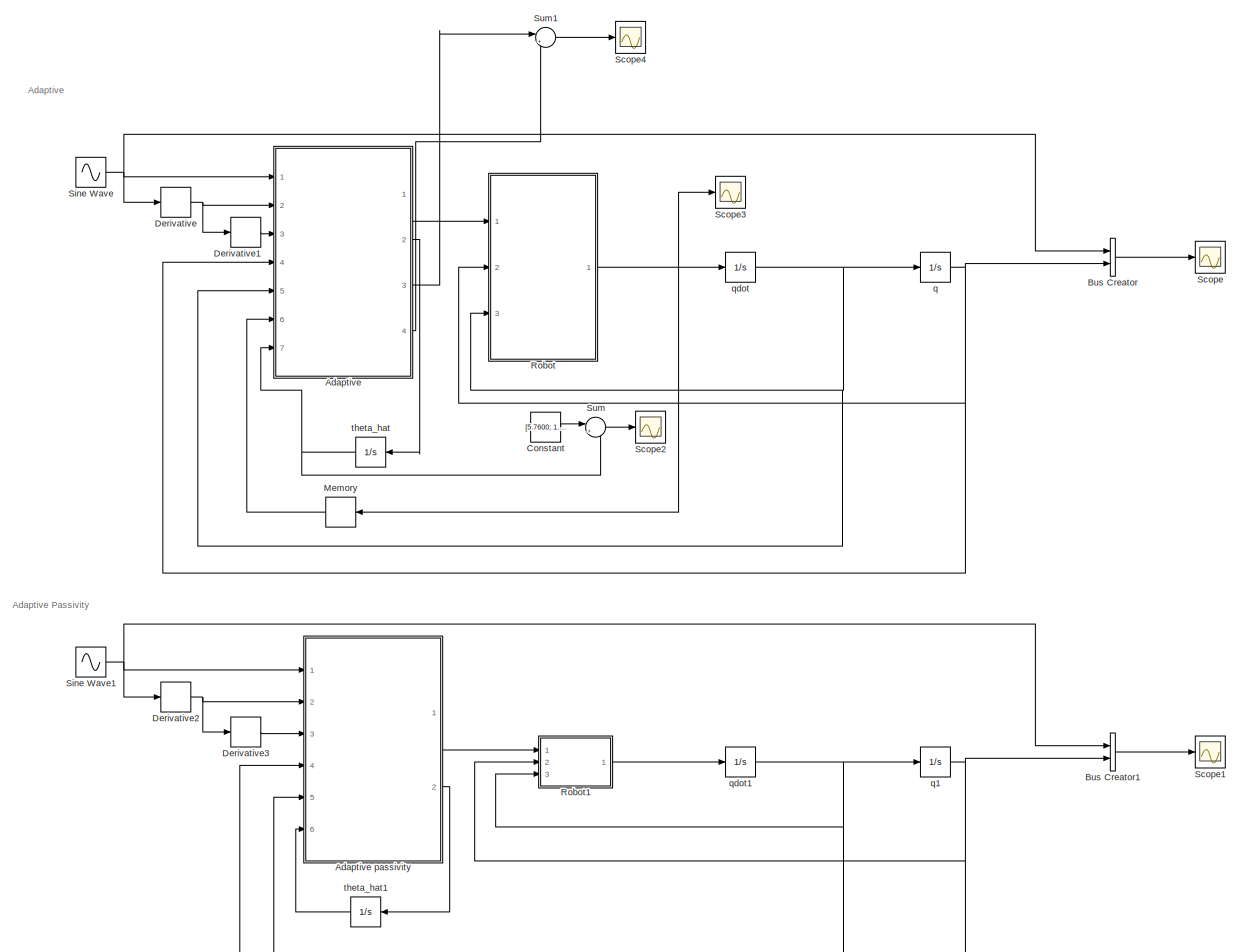
[diagram: root canvas - part 1/1, most of the canvas]
MODEL slx_e31635855269
KIND model
CONFIG AbsTol = auto
CONFIG EnableMultiTasking = off
CONFIG FixedStep = auto
CONFIG MaxStep = auto
CONFIG MinStep = auto
CONFIG RelTol = 1e-3
CONFIG SampleTimeConstraint = Unconstrained
CONFIG Solver = VariableStepAuto
CONFIG SolverName = VariableStepAuto
CONFIG StartTime = 0.0
CONFIG StopTime = 100
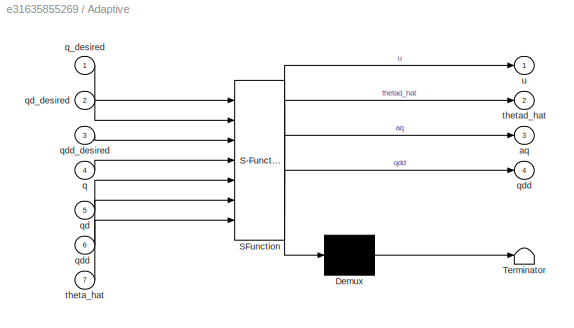
BLOCK [SubSystem] Adaptive
  Commented = on
  ErrorFcn = Stateflow.Translate.translate
  PermitHierarchicalResolution = ExplicitOnly
  Ports = [7, 4]
  RequestExecContextInheritance = off
  SFBlockType = MATLAB Function
  TreatAsAtomicUnit = on
  Variant = off
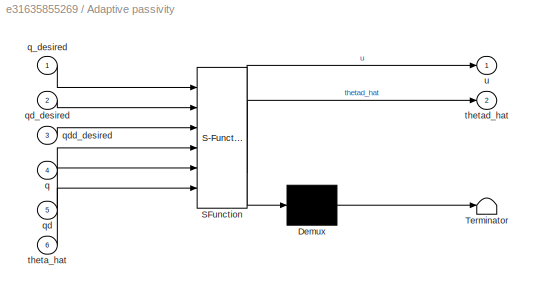
BLOCK [SubSystem] Adaptive passivity
  ErrorFcn = Stateflow.Translate.translate
  PermitHierarchicalResolution = ExplicitOnly
  Ports = [6, 2]
  RequestExecContextInheritance = off
  SFBlockType = MATLAB Function
  TreatAsAtomicUnit = on
  Variant = off
BLOCK [Demux] Adaptive passivity/ Demux 
  Outputs = 1
  Ports = [1, 1]
BLOCK [S-Function] Adaptive passivity/ SFunction 
  EnableBusSupport = on
  FunctionName = sf_sfun
  PortCounts = [6 3]
  Ports = [6, 3]
  SFcnIsStateOwnerBlock = off
  SFunctionDeploymentMode = off
  Tag = Stateflow S-Function Scara 3
BLOCK [Terminator] Adaptive passivity/ Terminator 
BLOCK [Inport] Adaptive passivity/q
  IconDisplay = Port number
  Port = 4
BLOCK [Inport] Adaptive passivity/q_desired
  IconDisplay = Port number
BLOCK [Inport] Adaptive passivity/qd
  IconDisplay = Port number
  Port = 5
BLOCK [Inport] Adaptive passivity/qd_desired
  IconDisplay = Port number
  Port = 2
BLOCK [Inport] Adaptive passivity/qdd_desired
  IconDisplay = Port number
  Port = 3
BLOCK [Inport] Adaptive passivity/theta_hat
  IconDisplay = Port number
  Port = 6
BLOCK [Outport] Adaptive passivity/thetad_hat
  IconDisplay = Port number
  Port = 2
BLOCK [Outport] Adaptive passivity/u
  IconDisplay = Port number
BLOCK [Demux] Adaptive/ Demux 
  Outputs = 1
  Ports = [1, 1]
BLOCK [S-Function] Adaptive/ SFunction 
  EnableBusSupport = on
  FunctionName = sf_sfun
  PortCounts = [7 5]
  Ports = [7, 5]
  SFcnIsStateOwnerBlock = off
  SFunctionDeploymentMode = off
  Tag = Stateflow S-Function Scara 1
BLOCK [Terminator] Adaptive/ Terminator 
BLOCK [Outport] Adaptive/aq
  IconDisplay = Port number
  Port = 3
BLOCK [Inport] Adaptive/q
  IconDisplay = Port number
  Port = 4
BLOCK [Inport] Adaptive/q_desired
  IconDisplay = Port number
BLOCK [Inport] Adaptive/qd
  IconDisplay = Port number
  Port = 5
BLOCK [Inport] Adaptive/qd_desired
  IconDisplay = Port number
  Port = 2
BLOCK [Outport] Adaptive/qdd
  IconDisplay = Port number
  Port = 4
BLOCK [Inport] Adaptive/qdd 
  IconDisplay = Port number
  Port = 6
BLOCK [Inport] Adaptive/qdd_desired
  IconDisplay = Port number
  Port = 3
BLOCK [Inport] Adaptive/theta_hat
  IconDisplay = Port number
  Port = 7
BLOCK [Outport] Adaptive/thetad_hat
  IconDisplay = Port number
  Port = 2
BLOCK [Outport] Adaptive/u
  IconDisplay = Port number
BLOCK [BusCreator] Bus Creator
  Commented = on
  DisplayOption = bar
  InheritFromInputs = on
  Inputs = 2
  Ports = [2, 1]
BLOCK [BusCreator] Bus Creator1
  DisplayOption = bar
  InheritFromInputs = on
  Inputs = 2
  Ports = [2, 1]
BLOCK [Constant] Constant
  Commented = on
  Value = [5.7600; 1.2000; 2.1600;  6.0000; 0.7200]
BLOCK [Derivative] Derivative
  Commented = on
BLOCK [Derivative] Derivative1
  Commented = on
BLOCK [Derivative] Derivative2
BLOCK [Derivative] Derivative3
BLOCK [Memory] Memory
  Commented = on
  X0 = zeros(3,1)
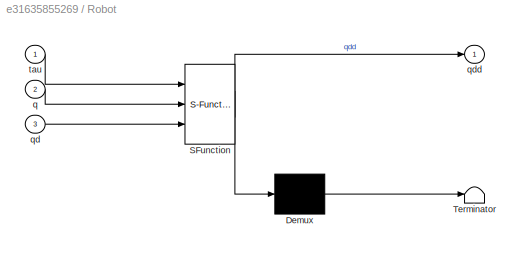
BLOCK [SubSystem] Robot
  Commented = on
  ErrorFcn = Stateflow.Translate.translate
  PermitHierarchicalResolution = ExplicitOnly
  Ports = [3, 1]
  RequestExecContextInheritance = off
  SFBlockType = MATLAB Function
  TreatAsAtomicUnit = on
  Variant = off
BLOCK [Demux] Robot/ Demux 
  Outputs = 1
  Ports = [1, 1]
BLOCK [S-Function] Robot/ SFunction 
  EnableBusSupport = on
  FunctionName = sf_sfun
  PortCounts = [3 2]
  Ports = [3, 2]
  SFcnIsStateOwnerBlock = off
  SFunctionDeploymentMode = off
  Tag = Stateflow S-Function Scara 2
BLOCK [Terminator] Robot/ Terminator 
BLOCK [Inport] Robot/q
  IconDisplay = Port number
  Port = 2
BLOCK [Inport] Robot/qd
  IconDisplay = Port number
  Port = 3
BLOCK [Outport] Robot/qdd
  IconDisplay = Port number
BLOCK [Inport] Robot/tau
  IconDisplay = Port number
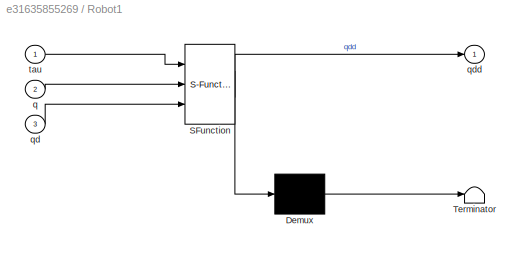
BLOCK [SubSystem] Robot1
  ErrorFcn = Stateflow.Translate.translate
  PermitHierarchicalResolution = ExplicitOnly
  Ports = [3, 1]
  RequestExecContextInheritance = off
  SFBlockType = MATLAB Function
  TreatAsAtomicUnit = on
  Variant = off
BLOCK [Demux] Robot1/ Demux 
  Outputs = 1
  Ports = [1, 1]
BLOCK [S-Function] Robot1/ SFunction 
  EnableBusSupport = on
  FunctionName = sf_sfun
  PortCounts = [3 2]
  Ports = [3, 2]
  SFcnIsStateOwnerBlock = off
  SFunctionDeploymentMode = off
  Tag = Stateflow S-Function Scara 4
BLOCK [Terminator] Robot1/ Terminator 
BLOCK [Inport] Robot1/q
  IconDisplay = Port number
  Port = 2
BLOCK [Inport] Robot1/qd
  IconDisplay = Port number
  Port = 3
BLOCK [Outport] Robot1/qdd
  IconDisplay = Port number
BLOCK [Inport] Robot1/tau
  IconDisplay = Port number
BLOCK [Scope] Scope
  Commented = on
  NumInputPorts = 1
  Ports = [1]
  ScopeSpecificationString = Simulink.scopes.TimeScopeBlockCfg('CurrentConfiguration', extmgr.ConfigurationSet(extmgr.Configuration('Core','General UI',true),extmgr.Configuration('Core','Source UI',true),extmgr.Configuration('Sources','WiredSimulink',true),extmgr.Configuration('Visuals','Time Domain',true,'SerializedDisplays',{struct('MinYLimReal','-0.65516','MaxYLimReal','5.89641','YLabelReal','','MinYLimMag','0.00000','MaxY...<+1429ch>
BLOCK [Scope] Scope1
  NumInputPorts = 1
  Ports = [1]
  ScopeSpecificationString = Simulink.scopes.TimeScopeBlockCfg('CurrentConfiguration', extmgr.ConfigurationSet(extmgr.Configuration('Core','General UI',true),extmgr.Configuration('Core','Source UI',true),extmgr.Configuration('Sources','WiredSimulink',true,'DataLoggingVariableName','ScopeData1'),extmgr.Configuration('Visuals','Time Domain',true,'SerializedDisplays',{struct('MinYLimReal','-1.46621','MaxYLimReal','12.85941','YLa...<+1571ch>
BLOCK [Scope] Scope2
  Commented = on
  NumInputPorts = 1
  Ports = [1]
  ScopeSpecificationString = Simulink.scopes.TimeScopeBlockCfg('CurrentConfiguration', extmgr.ConfigurationSet(extmgr.Configuration('Core','General UI',true),extmgr.Configuration('Core','Source UI',true),extmgr.Configuration('Sources','WiredSimulink',true,'DataLoggingVariableName','ScopeData1'),extmgr.Configuration('Visuals','Time Domain',true,'SerializedDisplays',{struct('MinYLimReal','-311.92075','MaxYLimReal','46.84351','Y...<+1435ch>
BLOCK [Scope] Scope3
  Commented = on
  NumInputPorts = 1
  Ports = [1]
  ScopeSpecificationString = Simulink.scopes.TimeScopeBlockCfg('CurrentConfiguration', extmgr.ConfigurationSet(extmgr.Configuration('Core','General UI',true),extmgr.Configuration('Core','Source UI',true),extmgr.Configuration('Sources','WiredSimulink',true,'DataLoggingVariableName','ScopeData1'),extmgr.Configuration('Visuals','Time Domain',true,'SerializedDisplays',{struct('MinYLimReal','-2.55976','MaxYLimReal','22.50664','YLa...<+1417ch>
BLOCK [Scope] Scope4
  Commented = on
  NumInputPorts = 1
  Ports = [1]
  ScopeSpecificationString = Simulink.scopes.TimeScopeBlockCfg('CurrentConfiguration', extmgr.ConfigurationSet(extmgr.Configuration('Core','General UI',true),extmgr.Configuration('Core','Source UI',true),extmgr.Configuration('Sources','WiredSimulink',true,'DataLoggingVariableName','ScopeData1'),extmgr.Configuration('Visuals','Time Domain',true,'SerializedDisplays',{struct('MinYLimReal','-5378.0744','MaxYLimReal','3305.76546',...<+1790ch>
BLOCK [Sin] Sine Wave
  Amplitude = ones(3,1)*0
  Bias = ones(3,1)*5
  Commented = on
  Ports = [0, 1]
  SampleTime = 0
BLOCK [Sin] Sine Wave1
  Amplitude = ones(3,1)*0
  Bias = ones(3,1)*10
  Ports = [0, 1]
  SampleTime = 0
BLOCK [Sum] Sum
  Commented = on
  IconShape = round
  InputSameDT = off
  Inputs = |+-
  OutDataTypeStr = Inherit: Inherit via internal rule
  Ports = [2, 1]
  SaturateOnIntegerOverflow = off
BLOCK [Sum] Sum1
  Commented = on
  IconShape = round
  InputSameDT = off
  Inputs = |+-
  OutDataTypeStr = Inherit: Inherit via internal rule
  Ports = [2, 1]
  SaturateOnIntegerOverflow = off
BLOCK [Integrator] q
  Commented = on
  InitialCondition = [0 0 0]'
  Ports = [1, 1]
BLOCK [Integrator] q1
  InitialCondition = [0 0 0]'
  Ports = [1, 1]
BLOCK [Integrator] qdot
  Commented = on
  InitialCondition = [0 0 0]'
  Ports = [1, 1]
BLOCK [Integrator] qdot1
  InitialCondition = [0 0 0]'
  Ports = [1, 1]
BLOCK [Integrator] theta_hat
  Commented = on
  InitialCondition = [6.3038\n    1.3461\n    1.9183\n    6.7441\n    0.7486]'
  Ports = [1, 1]
BLOCK [Integrator] theta_hat1
  InitialCondition = [5.6542\n    1.1574\n    2.3321\n    6.5314\n    0.6524]'
  Ports = [1, 1]
ANNOTATION (root): Adaptive
ANNOTATION (root): Adaptive Passivity
LINE Adaptive passivity:1 -> Robot1:1
LINE Adaptive passivity:2 -> theta_hat1:1
LINE Adaptive:1 -> Robot:1
LINE Adaptive:2 -> theta_hat:1
LINE Adaptive:3 -> Sum1:1
LINE Adaptive:4 -> Sum1:2
LINE Bus Creator1:1 -> Scope1:1
LINE Bus Creator:1 -> Scope:1
LINE Constant:1 -> Sum:1
LINE Derivative1:1 -> Adaptive:3
NET Derivative2:1 -> Adaptive passivity:2, Derivative3:1
LINE Derivative3:1 -> Adaptive passivity:3
NET Derivative:1 -> Adaptive:2, Derivative1:1
LINE Memory:1 -> Adaptive:6
LINE Robot1:1 -> qdot1:1
NET Robot:1 -> Memory:1, Scope3:1, qdot:1
NET Sine Wave1:1 -> Adaptive passivity:1, Bus Creator1:1, Derivative2:1
NET Sine Wave:1 -> Adaptive:1, Bus Creator:1, Derivative:1
LINE Sum1:1 -> Scope4:1
LINE Sum:1 -> Scope2:1
NET q1:1 -> Adaptive passivity:4, Bus Creator1:2, Robot1:2
NET q:1 -> Adaptive:4, Bus Creator:2, Robot:2
NET qdot1:1 -> Adaptive passivity:5, Robot1:3, q1:1
NET qdot:1 -> Adaptive:5, Robot:3, q:1
LINE theta_hat1:1 -> Adaptive passivity:6
NET theta_hat:1 -> Adaptive:7, Sum:2
note: NET lines group one-source signal fan-out (src -> all destinations, sorted); 1:1 wires keep LINE
CHART Adaptive states=1 transitions=1
  STATE_LABEL 'eML_blk_kernel()'
  STATE_LABEL 'SCRIPT:\nfunction [u, thetad_hat, aq, qdd] = fcn( q_desired, qd_desired, qdd_desired, q, qd, qdd, theta_hat)\n\ng = 9.81;\nq1 = q(1);\nq2 = q(2);\nq3 = q(3);\n\nqd1 = qd(1);\nqd2 = qd(2);\nqd3 = qd(3);\n\ne_q = q - q_desired;\ne_qd = qd - qd_desired;\n\nwn = 10;\nKd = eye(3)*wn^2;\nKp = eye(3)*2*wn;\naq = qdd_desired - Kd*e_qd - Kp*e_q;\nqdd1 = aq(1);\nqdd2 = aq(2);\nqdd3 = aq(3);\nY = [qdd1 qdd1 + qdd2 2*qdd1*cos(q2) ...<+1742ch>'
CHART Robot states=1 transitions=1
  STATE_LABEL 'eML_blk_kernel()'
  STATE_LABEL 'SCRIPT:\nfunction qdd = fcn(tau, q, qd)\n\na1 = 0.6;\na2 = 0.4;\n\nLc1 = 0.3;\nLc2 = 0.2;\n\ng = 9.81;\nm1 = 12;\nm2 = 6;\nm3 = 6;\nI1 = 0.36;\nI2 = 0.36;\nI3 = 0.36;\n\nq1 = q(1);\nq2 = q(2);\nq3 = q(3);\nqd1 = qd(1);\nqd2 = qd(2);\nqd3 = qd(3);\n\nd11 = m1*Lc1^2 + m2*(a1^2 + Lc2^2 + 2*a1*Lc2*cos(q2)) + m3*(a1^2 + a2^2 + 2*a1*a2*cos(q2)) + I1 + I2 + I3;\nd12 = m2*(Lc2^2 + a1*Lc2*cos(q2)) + m3*(a2^2 + a1*a2*cos(q2)) + I2 ...<+260ch>'
CHART Adaptive passivity states=1 transitions=1
  STATE_LABEL 'eML_blk_kernel()'
  STATE_LABEL 'SCRIPT:\nfunction [u, thetad_hat] = fcn( q_desired, qd_desired, qdd_desired, q, qd,theta_hat)\n\ng = 9.81;\nq1 = q(1);\nq2 = q(2);\nq3 = q(3);\n\nqd1 = qd(1);\nqd2 = qd(2);\nqd3 = qd(3);\n\ne_q = q - q_desired;\ne_qd = qd - qd_desired;\n\ngamma = eye(3);\nv = qd_desired - gamma*e_q;\nvd = qdd_desired - gamma*e_qd;\nr = qd - v;\n\nwn = 10;\nKd = eye(3)*wn^2;\nKp = eye(3)*2*wn;\nqdd1 = vd(1);\nqdd2 = vd(2);\nqdd3 = vd(3);\n\n...<+319ch>'
CHART Robot1 states=1 transitions=1
  STATE_LABEL 'eML_blk_kernel()'
  STATE_LABEL 'SCRIPT:\nfunction qdd = fcn(tau, q, qd)\n\na1 = 0.6;\na2 = 0.4;\n\nLc1 = 0.3;\nLc2 = 0.2;\n\ng = 9.81;\nm1 = 12;\nm2 = 6;\nm3 = 6;\nI1 = 0.36;\nI2 = 0.36;\nI3 = 0.36;\n\nq1 = q(1);\nq2 = q(2);\nq3 = q(3);\nqd1 = qd(1);\nqd2 = qd(2);\nqd3 = qd(3);\n\nd11 = m1*Lc1^2 + m2*(a1^2 + Lc2^2 + 2*a1*Lc2*cos(q2)) + m3*(a1^2 + a2^2 + 2*a1*a2*cos(q2)) + I1 + I2 + I3;\nd12 = m2*(Lc2^2 + a1*Lc2*cos(q2)) + m3*(a2^2 + a1*a2*cos(q2)) + I2 ...<+266ch>'
